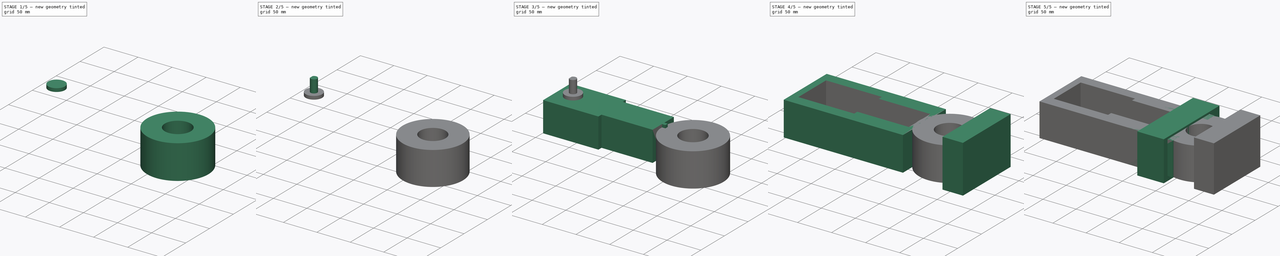
[diagram: build sequence overview — one tinted view per stage of 5, left to right]
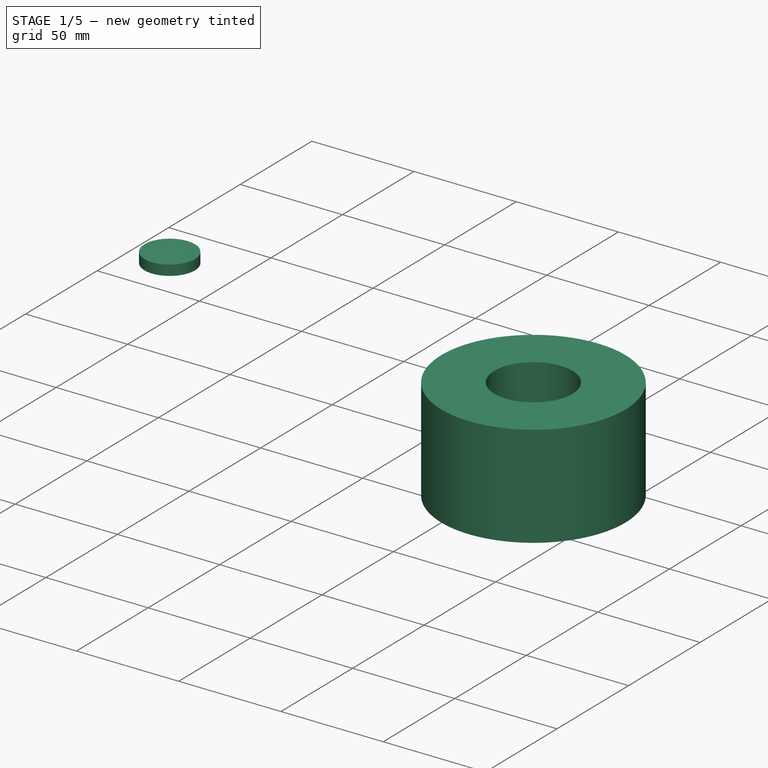
[diagram: stage 1 of 5 — iso view after this stage's code; geometry added in this stage tinted green]
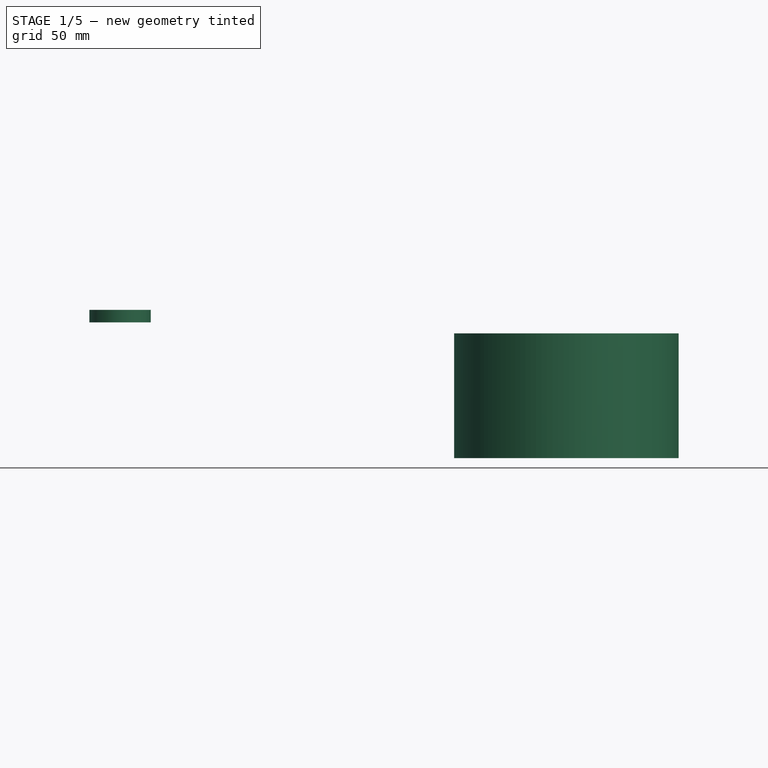
[diagram: stage 1 of 5 — front view after this stage's code; geometry added in this stage tinted green]
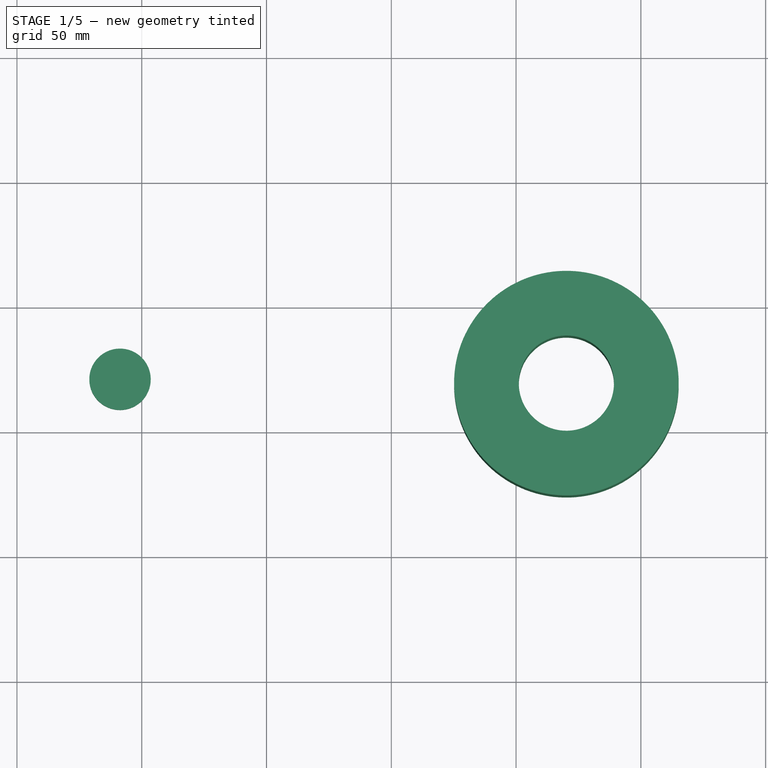
[diagram: stage 1 of 5 — top view after this stage's code; geometry added in this stage tinted green]
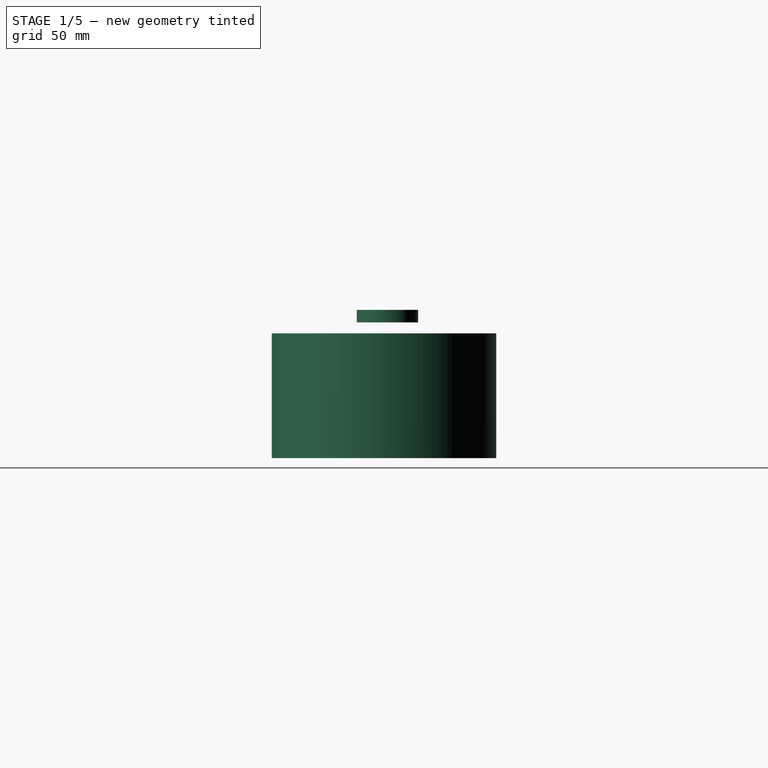
[diagram: stage 1 of 5 — right view after this stage's code; geometry added in this stage tinted green]
FCSTD DOCUMENT  (FreeCAD 0.20R29177 +426 (Git))
Label: motorMountShifted
License: All rights reserved
LicenseURL: http://en.wikipedia.org/wiki/All_rights_reserved
objects: Part::Box×8, Sketcher::SketchObject×5, Part::Extrusion×3, Part::MultiFuse×2, Part::Cut×1, Part::FeaturePython×1
note: 20 computed .brp shape members not serialized (recipe doc carries the construction recipe); baked Part::Feature solids carry a one-line shape summary decoded from their .brp

FEATURE [Part::Box] Box001  label="MotorHead"
  AttacherType = Attacher::AttachEngine3D
  Height = 44.4
  Length = 82
  Placement = pos=(-82,-9.63,0) rot=(0,0,1;0rad)
  Width = 58
FEATURE [Sketcher::SketchObject] Sketch
  ExternalGeometry = -> [Box001]
  FullyConstrained = true
  MapMode = 5
  Placement = pos=(-82,-9.63,44.4) rot=(0,0,1;0rad)
  Support = -> [Box001]
  sketch-geometry (2):
    g0: Circle CenterX=23.3 CenterY=30 CenterZ=0 NormalX=0 NormalY=0 NormalZ=1 AngleXU=0 Radius=12.3
    g1: GeomPoint X=23.3 Y=58 Z=0
  constraints (5):
    c: DistanceX(g0) = 23.3
    c: PointOnObject(g1,g-4)
    c: DistanceX(g-4,g1) = 23.3
    c: DistanceY(g0,g1) = 28
    c: Diameter(g0) = 24.6
FEATURE [Part::Extrusion] Extrude  label="MotorShaftBasePlate"
  Base = -> Sketch
  Dir = (0,0,1)
  DirMode = 2
  FaceMakerClass = Part::FaceMakerBullseye
  LengthFwd = 5
  LengthRev = 0
  Solid = true
  Symmetric = false
FEATURE [Part::FeaturePython] Tube  label="SteeringShaftMount"  # WARN: FeaturePython — macro-defined, semantics opaque (R4)
  AttacherType = Attacher::AttachEngine3D
  Height = 50
  InnerRadius = 19.07
  OuterRadius = 45
  Placement = pos=(120.15,19,-10) rot=(0,0,1;0rad)
FEATURE [Sketcher::SketchObject] Sketch003
  ExternalGeometry = -> [Tube]
  FullyConstrained = true
  MapMode = 5
  Placement = pos=(120.15,19,40) rot=(0,0,1;0rad)
  Support = -> [Tube]
  sketch-geometry (42):
    g0: Circle CenterX=0 CenterY=2.9e-15 CenterZ=0 NormalX=0 NormalY=0 NormalZ=1 AngleXU=0 Radius=24.075
    g1: ArcOfCircle CenterX=0 CenterY=2.9e-15 CenterZ=0 NormalX=0 NormalY=0 NormalZ=1 AngleXU=0 Radius=24.075 StartAngle=1.0472 EndAngle=1.5708
    g2: LineSegment StartX=0 StartY=2.9e-15 StartZ=0 EndX=12.0375 EndY=20.8496 EndZ=0
    g3: LineSegment StartX=0 StartY=2.9e-15 StartZ=0 EndX=0 EndY=24.075 EndZ=0
    g4: ArcOfCircle CenterX=0 CenterY=2.9e-15 CenterZ=0 NormalX=0 NormalY=0 NormalZ=1 AngleXU=0 Radius=19.075 StartAngle=1.0472 EndAngle=1.5708
    g5: LineSegment StartX=0 StartY=24.075 StartZ=0 EndX=1.2e-15 EndY=19.075 EndZ=0
    g6: LineSegment StartX=12.0375 StartY=20.8496 StartZ=0 EndX=9.5375 EndY=16.5194 EndZ=0
    g7: ArcOfCircle CenterX=0 CenterY=2.9e-15 CenterZ=0 NormalX=0 NormalY=0 NormalZ=1 AngleXU=0 Radius=24.075 StartAngle=0.523599 EndAngle=1.0472
    g8: ArcOfCircle CenterX=0 CenterY=2.9e-15 CenterZ=0 NormalX=0 NormalY=0 NormalZ=1 AngleXU=0 Radius=24.075 StartAngle=0 EndAngle=0.523599
    g9: LineSegment StartX=0 StartY=2.9e-15 StartZ=0 EndX=20.8496 EndY=12.0375 EndZ=0
    g10: LineSegment StartX=0 StartY=2.9e-15 StartZ=0 EndX=24.075 EndY=-2.9e-15 EndZ=0
    g11: ArcOfCircle CenterX=0 CenterY=2.9e-15 CenterZ=0 NormalX=0 NormalY=0 NormalZ=1 AngleXU=0 Radius=19.07 StartAngle=0 EndAngle=0.523599
    g12: LineSegment StartX=19.07 StartY=2.9e-15 StartZ=0 EndX=24.075 EndY=-2.9e-15 EndZ=0
    g13: LineSegment StartX=16.5151 StartY=9.535 StartZ=0 EndX=20.8496 EndY=12.0375 EndZ=0
    g14: ArcOfCircle CenterX=0 CenterY=2.9e-15 CenterZ=0 NormalX=0 NormalY=0 NormalZ=1 AngleXU=0 Radius=24.075 StartAngle=5.75959 EndAngle=6.28319
    g15: ArcOfCircle CenterX=0 CenterY=2.9e-15 CenterZ=0 NormalX=0 NormalY=0 NormalZ=1 AngleXU=0 Radius=24.075 StartAngle=5.23599 EndAngle=5.75959
    g16: LineSegment StartX=12.0375 StartY=-20.8496 StartZ=0 EndX=0 EndY=3.6e-15 EndZ=0
    g17: LineSegment StartX=0 StartY=2.9e-15 StartZ=0 EndX=20.8496 EndY=-12.0375 EndZ=0
    g18: ArcOfCircle CenterX=0 CenterY=2.9e-15 CenterZ=0 NormalX=0 NormalY=0 NormalZ=1 AngleXU=0 Radius=19.075 StartAngle=5.23599 EndAngle=5.75959
    g19: LineSegment StartX=9.5375 StartY=-16.5194 StartZ=0 EndX=12.0375 EndY=-20.8496 EndZ=0
    g20: LineSegment StartX=16.5194 StartY=-9.5375 StartZ=0 EndX=20.8496 EndY=-12.0375 EndZ=0
    g21: ArcOfCircle CenterX=0 CenterY=2.9e-15 CenterZ=0 NormalX=0 NormalY=0 NormalZ=1 AngleXU=0 Radius=24.075 StartAngle=4.71239 EndAngle=5.23599
    g22: ArcOfCircle CenterX=0 CenterY=2.9e-15 CenterZ=0 NormalX=0 NormalY=0 NormalZ=1 AngleXU=0 Radius=24.075 StartAngle=4.18879 EndAngle=4.71239
    g23: LineSegment StartX=0 StartY=2.9e-15 StartZ=0 EndX=-4.4e-15 EndY=-24.075 EndZ=0
    g24: LineSegment StartX=0 StartY=2.9e-15 StartZ=0 EndX=-12.0375 EndY=-20.8496 EndZ=0
    g25: ArcOfCircle CenterX=0 CenterY=2.9e-15 CenterZ=0 NormalX=0 NormalY=0 NormalZ=1 AngleXU=0 Radius=19.07 StartAngle=4.18879 EndAngle=4.71239
    g26: LineSegment StartX=-12.0375 StartY=-20.8496 StartZ=0 EndX=-9.535 EndY=-16.5151 EndZ=0
    g27: LineSegment StartX=-3.5e-15 StartY=-19.07 StartZ=0 EndX=-4.4e-15 EndY=-24.075 EndZ=0
    g28: ArcOfCircle CenterX=0 CenterY=2.9e-15 CenterZ=0 NormalX=0 NormalY=0 NormalZ=1 AngleXU=0 Radius=24.075 StartAngle=3.66519 EndAngle=4.18879
    g29: ArcOfCircle CenterX=0 CenterY=2.9e-15 CenterZ=0 NormalX=0 NormalY=0 NormalZ=1 AngleXU=0 Radius=24.075 StartAngle=3.14159 EndAngle=3.66519
    g30: LineSegment StartX=-20.8496 StartY=-12.0375 StartZ=0 EndX=0 EndY=3.6e-15 EndZ=0
    g31: LineSegment StartX=0 StartY=2.9e-15 StartZ=0 EndX=-24.075 EndY=2.9e-15 EndZ=0
    g32: ArcOfCircle CenterX=0 CenterY=2.9e-15 CenterZ=0 NormalX=0 NormalY=0 NormalZ=1 AngleXU=0 Radius=19.07 StartAngle=3.14159 EndAngle=3.66519
    g33: LineSegment StartX=-19.07 StartY=2.9e-15 StartZ=0 EndX=-24.075 EndY=2.9e-15 EndZ=0
    g34: LineSegment StartX=-20.8496 StartY=-12.0375 StartZ=0 EndX=-16.5151 EndY=-9.535 EndZ=0
    g35: ArcOfCircle CenterX=0 CenterY=2.9e-15 CenterZ=0 NormalX=0 NormalY=0 NormalZ=1 AngleXU=0 Radius=24.075 StartAngle=2.61799 EndAngle=3.14159
    g36: ArcOfCircle CenterX=0 CenterY=2.9e-15 CenterZ=0 NormalX=0 NormalY=0 NormalZ=1 AngleXU=0 Radius=24.075 StartAngle=2.0944 EndAngle=2.61799
    g37: LineSegment StartX=0 StartY=2.9e-15 StartZ=0 EndX=-12.0375 EndY=20.8496 EndZ=0
    g38: LineSegment StartX=-20.8496 StartY=12.0375 StartZ=0 EndX=0 EndY=3.6e-15 EndZ=0
    g39: ArcOfCircle CenterX=0 CenterY=2.9e-15 CenterZ=0 NormalX=0 NormalY=0 NormalZ=1 AngleXU=0 Radius=19.075 StartAngle=2.0944 EndAngle=2.61799
    g40: LineSegment StartX=-16.5194 StartY=9.5375 StartZ=0 EndX=-20.8496 EndY=12.0375 EndZ=0
    g41: LineSegment StartX=-12.0375 StartY=20.8496 StartZ=0 EndX=-9.5375 EndY=16.5194 EndZ=0
  constraints (109):
    c: Coincident(g0,g-4)
    c: Radius(g0) = 24.075
    c: Coincident(g1,g0)
    c: PointOnObject(g1,g0)
    c: Angle(g1) = 0.523599
    c: Coincident(g2,g0)
    c: Coincident(g2,g1)
    c: Coincident(g3,g0)
    c: Coincident(g3,g1)
    c: Vertical(g3)
    c: Coincident(g4,g0)
    c: PointOnObject(g4,g3)
    c: PointOnObject(g4,g2)
    c: Radius(g4) = 19.075
    c: Coincident(g5,g1)
    c: Coincident(g5,g4)
    c: Coincident(g6,g1)
    c: Coincident(g6,g4)
    c: Coincident(g7,g0)
    c: Coincident(g7,g1)
    c: Angle(g7) = 0.523599
    c: Coincident(g8,g0)
    c: Coincident(g8,g7)
    c: Angle(g8) = 0.523599
    c: Coincident(g9,g0)
    c: Coincident(g9,g7)
    c: Coincident(g10,g0)
    c: Coincident(g10,g8)
    c: Coincident(g11,g0)
    c: PointOnObject(g11,g-3)
    c: Angle(g11) = 0.523599
    c: PointOnObject(g11,g9)
    c: Coincident(g12,g11)
    c: Coincident(g12,g8)
    c: Coincident(g13,g11)
    c: Coincident(g13,g7)
    c: Coincident(g14,g0)
    c: Coincident(g14,g8)
    c: Angle(g14) = 0.523599
    c: Coincident(g15,g0)
    c: Coincident(g15,g14)
    c: Angle(g15) = 0.523599
    c: Coincident(g16,g15)
    c: Coincident(g16,g0)
    c: Coincident(g17,g0)
    c: Coincident(g17,g14)
    c: Coincident(g18,g0)
    c: PointOnObject(g18,g17)
    c: PointOnObject(g18,g16)
    c: Radius(g18) = 19.075
    c: Coincident(g19,g18)
    c: Coincident(g19,g15)
    c: Coincident(g20,g18)
    c: Coincident(g20,g14)
    c: Coincident(g21,g0)
    c: Coincident(g21,g15)
    c: Angle(g21) = 0.523599
    c: Coincident(g22,g0)
    c: Coincident(g22,g21)
    c: Angle(g22) = 0.523599
    c: Coincident(g23,g0)
    c: Coincident(g23,g21)
    c: Coincident(g24,g0)
    c: Coincident(g24,g22)
    c: Coincident(g25,g0)
    c: PointOnObject(g25,g23)
    c: PointOnObject(g25,g-3)
    c: Angle(g25) = 0.523599
    c: Coincident(g26,g22)
    c: Coincident(g26,g25)
    c: Coincident(g27,g25)
    c: Coincident(g27,g21)
    c: Coincident(g28,g0)
    c: PointOnObject(g28,g22)
    c: Angle(g28) = 0.523599
    c: Coincident(g29,g0)
    c: Coincident(g29,g28)
    c: Angle(g29) = 0.523599
    c: Coincident(g30,g28)
    c: Coincident(g30,g0)
    c: Coincident(g31,g0)
    c: Coincident(g31,g29)
    c: Horizontal(g31)
    c: Coincident(g32,g0)
    c: PointOnObject(g32,g-3)
    c: Coincident(g33,g32)
    c: Coincident(g33,g29)
    c: Horizontal(g33)
    c: Coincident(g34,g28)
    c: Coincident(g34,g32)
    c: Angle(g32) = 0.523599
    c: Coincident(g35,g0)
    c: Coincident(g35,g29)
    c: Angle(g35) = 0.523599
    c: Coincident(g36,g0)
    c: Coincident(g36,g35)
    c: Angle(g36) = 0.523599
    c: Coincident(g37,g0)
    c: Coincident(g37,g36)
    c: Coincident(g38,g35)
    c: Coincident(g38,g0)
    c: Coincident(g39,g0)
    c: PointOnObject(g39,g38)
    c: PointOnObject(g39,g37)
    c: Radius(g39) = 19.075
    c: Coincident(g40,g39)
    c: Coincident(g40,g35)
    c: Coincident(g41,g36)
    c: Coincident(g41,g39)
FEATURE [Sketcher::SketchObject] Sketch004
  ExternalGeometry = -> [Sketch003]
  FullyConstrained = true
  MapMode = 5
  Placement = pos=(120.15,19,40) rot=(0,0,1;0rad)
  Support = -> [Tube]
  sketch-geometry (24):
    g0: LineSegment StartX=16.5194 StartY=-9.5375 StartZ=0 EndX=20.8496 EndY=-12.0375 EndZ=0
    g1: ArcOfCircle CenterX=0 CenterY=0 CenterZ=0 NormalX=0 NormalY=0 NormalZ=1 AngleXU=0 Radius=19.075 StartAngle=5.23599 EndAngle=5.75959
    g2: ArcOfCircle CenterX=0 CenterY=0 CenterZ=0 NormalX=0 NormalY=0 NormalZ=1 AngleXU=0 Radius=24.075 StartAngle=5.23599 EndAngle=5.75959
    g3: LineSegment StartX=12.0375 StartY=-20.8496 StartZ=0 EndX=9.5375 EndY=-16.5194 EndZ=0
    g4: LineSegment StartX=-4.4e-15 StartY=-24.075 StartZ=0 EndX=-3.5e-15 EndY=-19.07 EndZ=0
    g5: LineSegment StartX=-9.535 StartY=-16.5151 StartZ=0 EndX=-12.0375 EndY=-20.8496 EndZ=0
    g6: LineSegment StartX=-20.8496 StartY=-12.0375 StartZ=0 EndX=-16.5151 EndY=-9.535 EndZ=0
    g7: LineSegment StartX=-19.07 StartY=2.3e-15 StartZ=0 EndX=-24.075 EndY=2.9e-15 EndZ=0
    g8: LineSegment StartX=-16.5194 StartY=9.5375 StartZ=0 EndX=-20.8496 EndY=12.0375 EndZ=0
    g9: LineSegment StartX=-12.0375 StartY=20.8496 StartZ=0 EndX=-9.5375 EndY=16.5194 EndZ=0
    g10: LineSegment StartX=1.5e-15 StartY=24.075 StartZ=0 EndX=1.2e-15 EndY=19.075 EndZ=0
    g11: LineSegment StartX=9.5375 StartY=16.5194 StartZ=0 EndX=12.0375 EndY=20.8496 EndZ=0
    g12: LineSegment StartX=16.5151 StartY=9.535 StartZ=0 EndX=20.8496 EndY=12.0375 EndZ=0
    g13: LineSegment StartX=19.07 StartY=0 StartZ=0 EndX=24.075 EndY=0 EndZ=0
    g14: ArcOfCircle CenterX=0 CenterY=0 CenterZ=0 NormalX=0 NormalY=0 NormalZ=1 AngleXU=0 Radius=19.07 StartAngle=4.18879 EndAngle=4.71239
    g15: ArcOfCircle CenterX=0 CenterY=0 CenterZ=0 NormalX=0 NormalY=0 NormalZ=1 AngleXU=0 Radius=24.075 StartAngle=4.18879 EndAngle=4.71239
    g16: ArcOfCircle CenterX=0 CenterY=0 CenterZ=0 NormalX=0 NormalY=0 NormalZ=1 AngleXU=0 Radius=24.075 StartAngle=3.14159 EndAngle=3.66519
    g17: ArcOfCircle CenterX=0 CenterY=0 CenterZ=0 NormalX=0 NormalY=0 NormalZ=1 AngleXU=0 Radius=19.07 StartAngle=3.14159 EndAngle=3.66519
    g18: ArcOfCircle CenterX=0 CenterY=0 CenterZ=0 NormalX=0 NormalY=0 NormalZ=1 AngleXU=0 Radius=19.075 StartAngle=2.0944 EndAngle=2.61799
    g19: ArcOfCircle CenterX=0 CenterY=0 CenterZ=0 NormalX=0 NormalY=0 NormalZ=1 AngleXU=0 Radius=24.075 StartAngle=2.0944 EndAngle=2.61799
    g20: ArcOfCircle CenterX=0 CenterY=0 CenterZ=0 NormalX=0 NormalY=0 NormalZ=1 AngleXU=0 Radius=24.075 StartAngle=1.0472 EndAngle=1.5708
    g21: ArcOfCircle CenterX=0 CenterY=0 CenterZ=0 NormalX=0 NormalY=0 NormalZ=1 AngleXU=0 Radius=19.075 StartAngle=1.0472 EndAngle=1.5708
    g22: ArcOfCircle CenterX=0 CenterY=0 CenterZ=0 NormalX=0 NormalY=0 NormalZ=1 AngleXU=0 Radius=19.07 StartAngle=0 EndAngle=0.523599
    g23: ArcOfCircle CenterX=0 CenterY=0 CenterZ=0 NormalX=0 NormalY=0 NormalZ=1 AngleXU=0 Radius=24.075 StartAngle=0 EndAngle=0.523599
  constraints (60):
    c: Coincident(g0,g-14)
    c: Coincident(g0,g-8)
    c: Coincident(g1,g-16)
    c: Coincident(g1,g0)
    c: Coincident(g1,g-21)
    c: Coincident(g2,g1)
    c: Coincident(g2,g0)
    c: Coincident(g2,g-21)
    c: Coincident(g3,g2)
    c: Coincident(g3,g1)
    c: Coincident(g4,g-22)
    c: Coincident(g4,g-22)
    c: Coincident(g5,g-20)
    c: Coincident(g5,g-20)
    c: PointOnObject(g6,g-19)
    c: Coincident(g6,g-19)
    c: Coincident(g7,g-23)
    c: Coincident(g7,g-23)
    c: Coincident(g8,g-18)
    c: Coincident(g8,g-18)
    c: Coincident(g9,g-17)
    c: Coincident(g9,g-17)
    c: Coincident(g10,g-6)
    c: Coincident(g10,g-4)
    c: Coincident(g11,g-5)
    c: Coincident(g11,g-6)
    c: Coincident(g12,g-24)
    c: Coincident(g12,g-24)
    c: Coincident(g13,g-13)
    c: Coincident(g13,g-7)
    c: Coincident(g14,g1)
    c: Coincident(g14,g5)
    c: Coincident(g14,g4)
    c: Coincident(g15,g1)
    c: Coincident(g15,g5)
    c: Coincident(g15,g4)
    c: Coincident(g16,g1)
    c: Coincident(g16,g6)
    c: Coincident(g16,g7)
    c: Coincident(g17,g1)
    c: Coincident(g17,g6)
    c: Coincident(g17,g7)
    c: Coincident(g18,g1)
    c: Coincident(g18,g8)
    c: Coincident(g18,g9)
    c: Coincident(g19,g1)
    c: Coincident(g19,g8)
    c: Coincident(g19,g9)
    c: Coincident(g20,g1)
    c: Coincident(g20,g10)
    c: Coincident(g20,g11)
    c: Coincident(g21,g1)
    c: Coincident(g21,g10)
    c: Coincident(g21,g11)
    c: Coincident(g22,g1)
    c: Coincident(g22,g12)
    c: Coincident(g22,g13)
    c: Coincident(g23,g1)
    c: Coincident(g23,g12)
    c: Coincident(g23,g13)
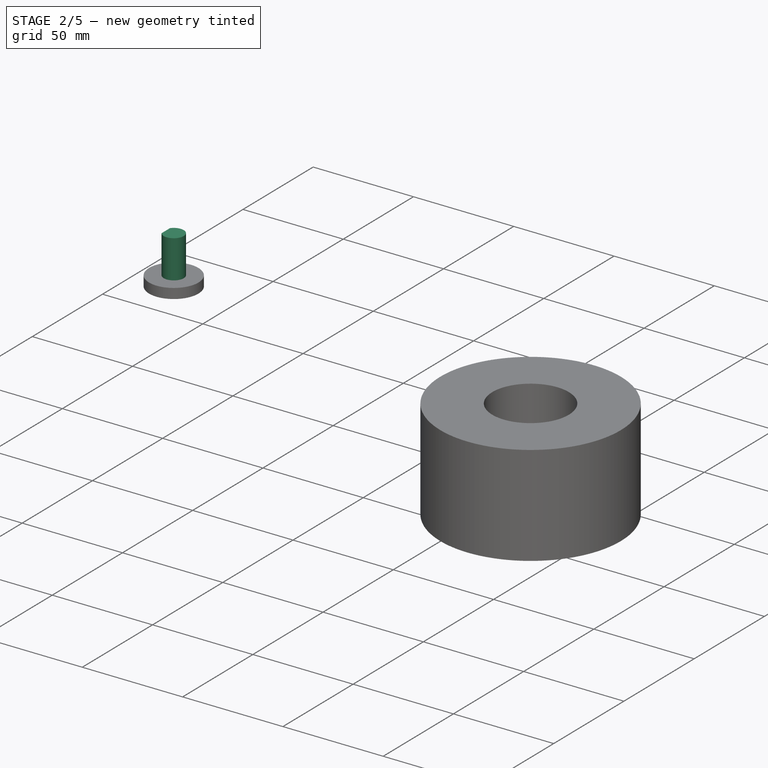
[diagram: stage 2 of 5 — iso view after this stage's code; geometry added in this stage tinted green]
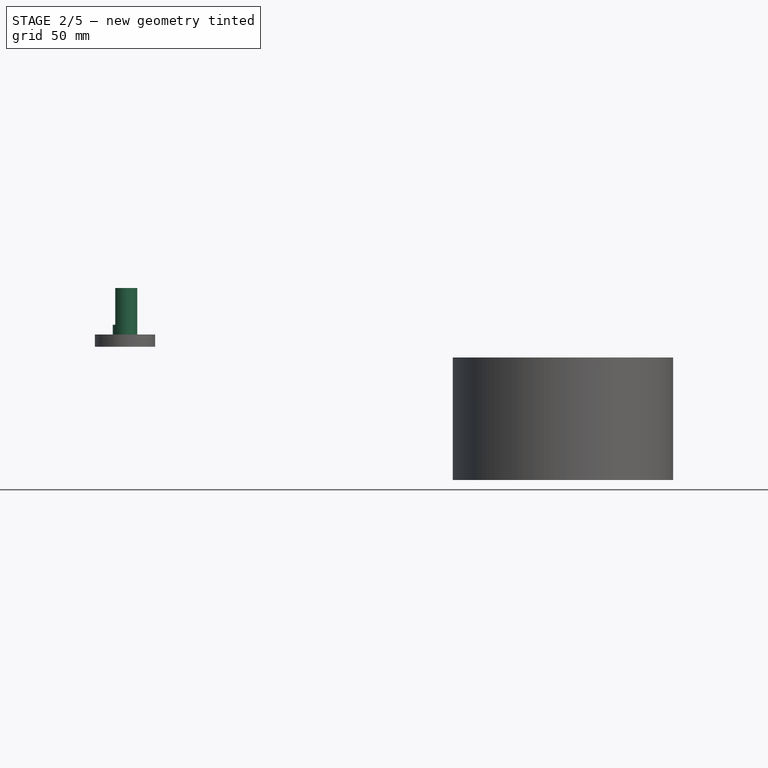
[diagram: stage 2 of 5 — front view after this stage's code; geometry added in this stage tinted green]
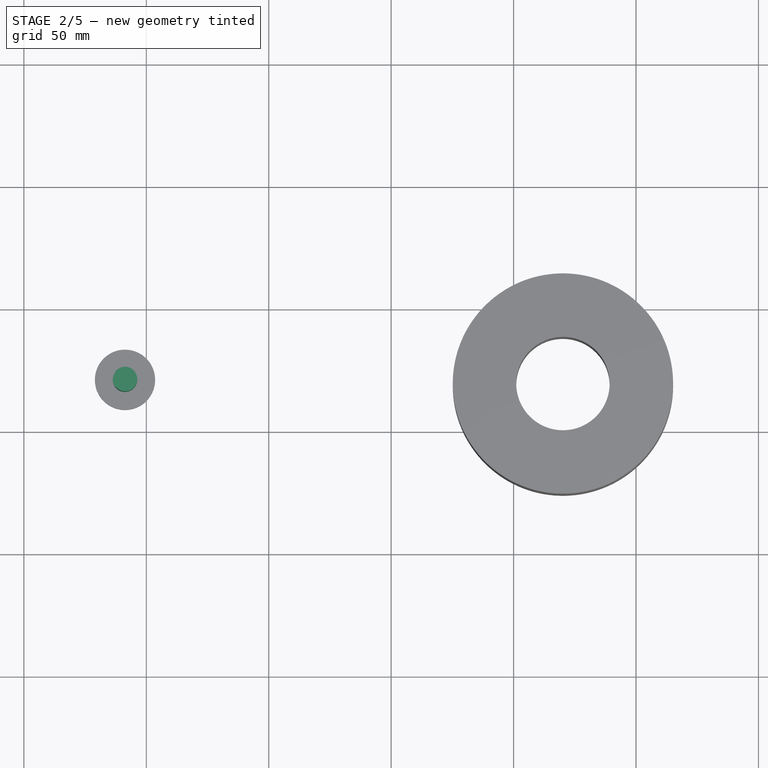
[diagram: stage 2 of 5 — top view after this stage's code; geometry added in this stage tinted green]
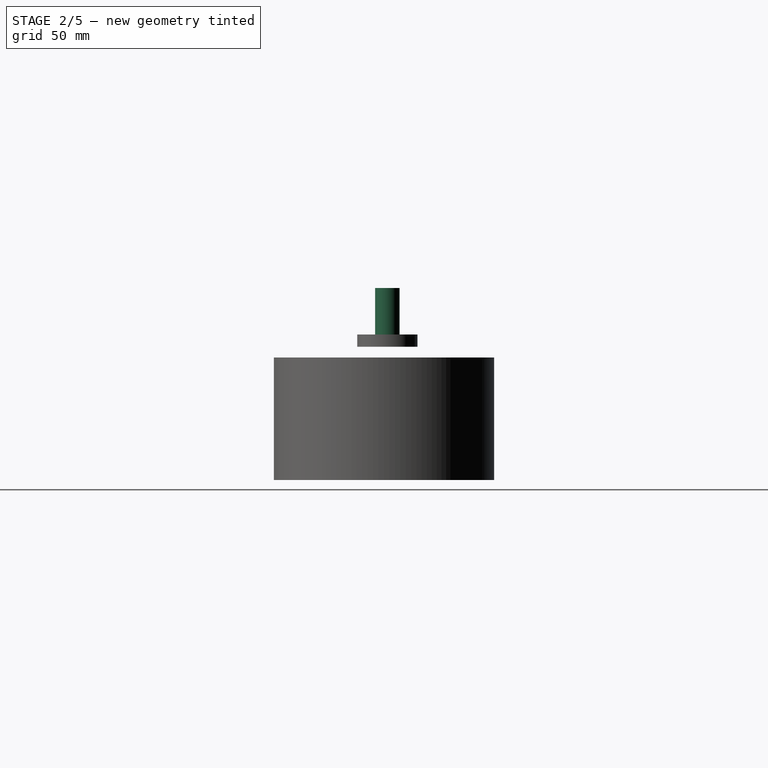
[diagram: stage 2 of 5 — right view after this stage's code; geometry added in this stage tinted green]
FEATURE [Sketcher::SketchObject] Sketch001
  ExternalGeometry = -> [Extrude,Box001]
  FullyConstrained = true
  MapMode = 5
  Placement = pos=(0,0,49.4) rot=(0,0,1;0rad)
  Support = -> [Extrude]
  sketch-geometry (3):
    g0: GeomPoint X=-82 Y=20.37 Z=0
    g1: GeomPoint X=-58.7 Y=48.37 Z=0
    g2: Circle CenterX=-58.7 CenterY=20.37 CenterZ=0 NormalX=0 NormalY=0 NormalZ=1 AngleXU=0 Radius=5
  constraints (6):
    c: PointOnObject(g0,g-4)
    c: PointOnObject(g1,g-5)
    c: DistanceY(g0,g-5) = 28
    c: DistanceX(g-5,g1) = 23.3
    c: Diameter(g2) = 10
    c: Coincident(g2,g-3)
FEATURE [Part::Extrusion] Extrude001  label="MotorShaftFull"
  Base = -> Sketch001
  Dir = (0,0,1)
  DirMode = 2
  FaceMakerClass = Part::FaceMakerBullseye
  LengthFwd = 4
  LengthRev = 0
  Solid = true
  Symmetric = false
FEATURE [Sketcher::SketchObject] Sketch002
  ExternalGeometry = -> [Extrude001]
  FullyConstrained = true
  MapMode = 5
  Placement = pos=(0,0,53.4) rot=(0,0,1;0rad)
  Support = -> [Extrude001]
  sketch-geometry (2):
    g0: LineSegment StartX=-62.7 StartY=23.37 StartZ=0 EndX=-62.7 EndY=17.37 EndZ=0
    g1: ArcOfCircle CenterX=-58.7 CenterY=20.37 CenterZ=0 NormalX=0 NormalY=0 NormalZ=1 AngleXU=0 Radius=5 StartAngle=3.78509 EndAngle=8.78128
  constraints (6):
    c: PointOnObject(g0,g-3)
    c: Vertical(g0)
    c: Coincident(g1,g-3)
    c: Coincident(g1,g0)
    c: Coincident(g1,g0)
    c: DistanceX(g0,g1) = 4
FEATURE [Part::Extrusion] Extrude002  label="MotorShaftD"
  Base = -> Sketch002
  Dir = (0,0,1)
  DirMode = 2
  FaceMakerClass = Part::FaceMakerBullseye
  LengthFwd = 15
  LengthRev = 0
  Solid = true
  Symmetric = false
FEATURE [Part::MultiFuse] Fusion  label="MotorShaftAssembly"
  Shapes = -> [Extrude,Extrude001,Extrude002]
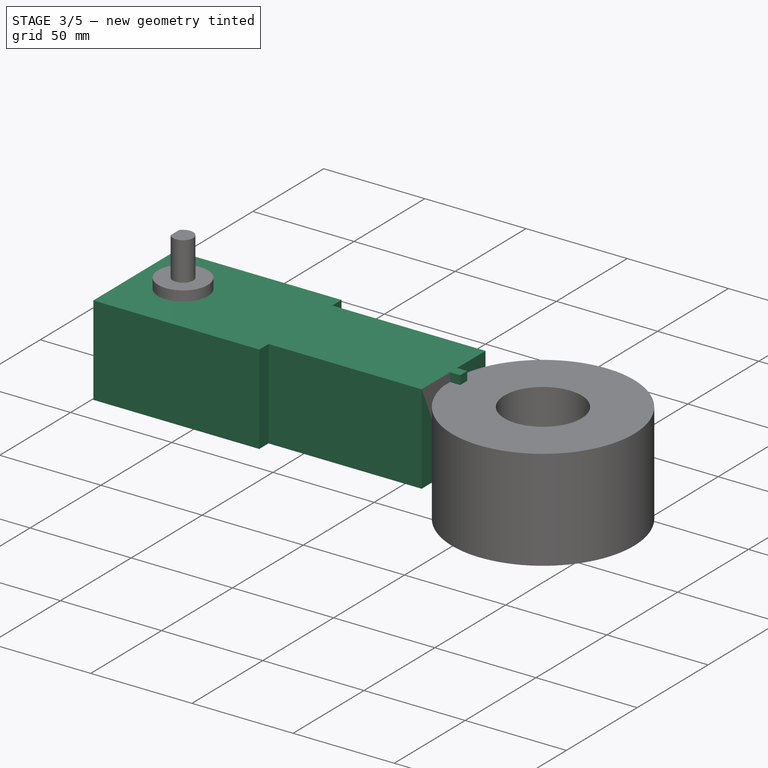
[diagram: stage 3 of 5 — iso view after this stage's code; geometry added in this stage tinted green]
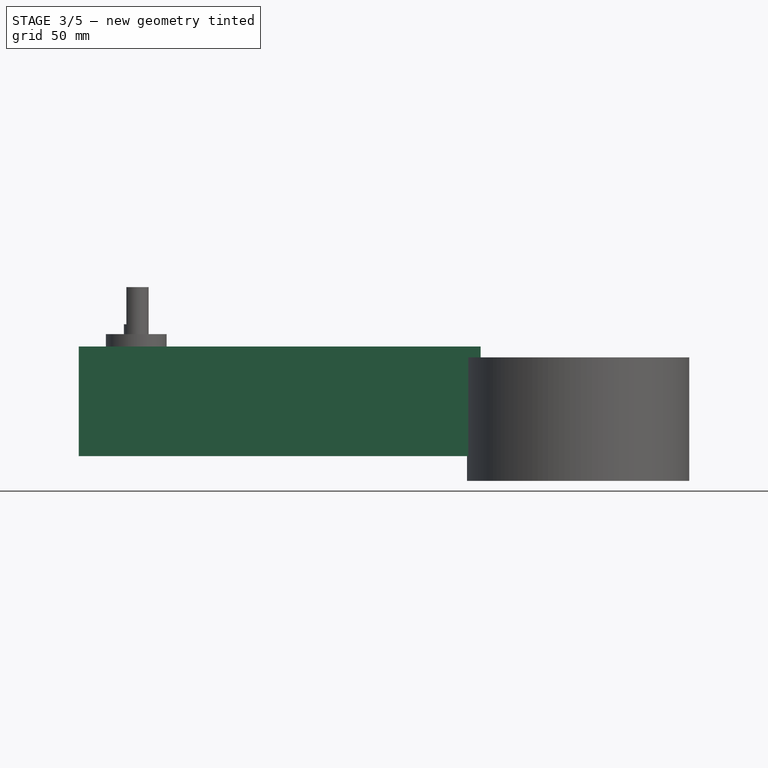
[diagram: stage 3 of 5 — front view after this stage's code; geometry added in this stage tinted green]
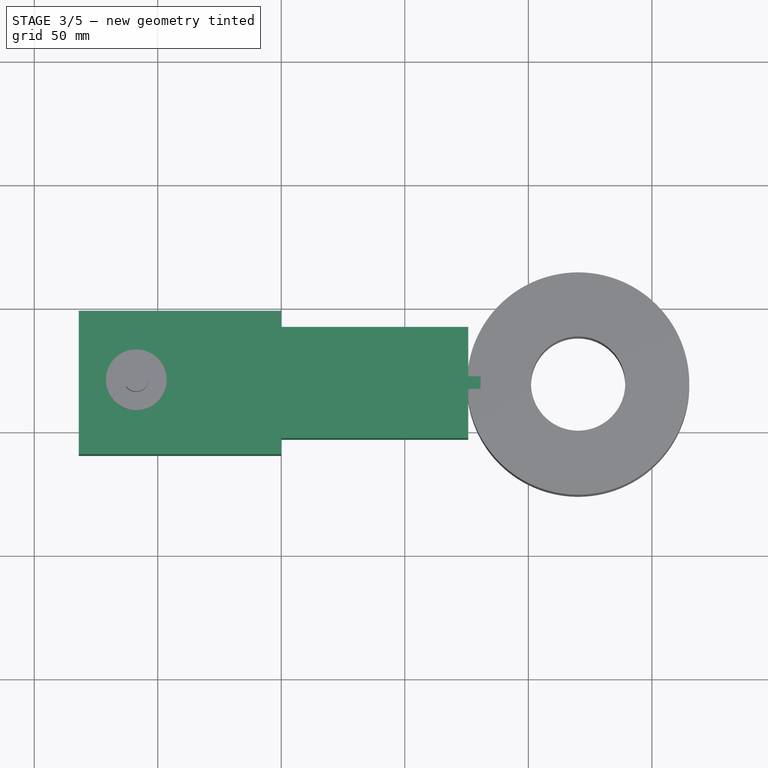
[diagram: stage 3 of 5 — top view after this stage's code; geometry added in this stage tinted green]
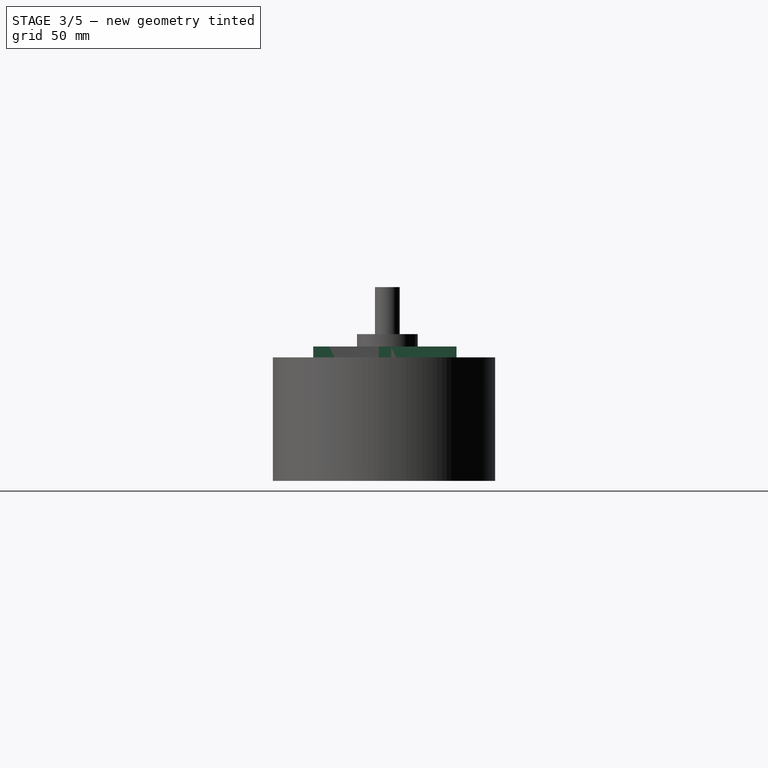
[diagram: stage 3 of 5 — right view after this stage's code; geometry added in this stage tinted green]
FEATURE [Part::Box] Box  label="MotorCyclinder"
  AttacherType = Attacher::AttachEngine3D
  Height = 44.4
  Length = 75.7
  Placement = pos=(0,-3.13,0) rot=(0,0,1;0rad)
  Width = 45
FEATURE [Part::Box] Box007  label="NubChannel"
  AttacherType = Attacher::AttachEngine3D
  Height = 44.4
  Length = 5
  Placement = pos=(75.7,16.87,0) rot=(0,0,1;0rad)
  Width = 5
FEATURE [Part::MultiFuse] Fusion005  label="Motor"
  Shapes = -> [Box,Box001,Box007,Fusion]
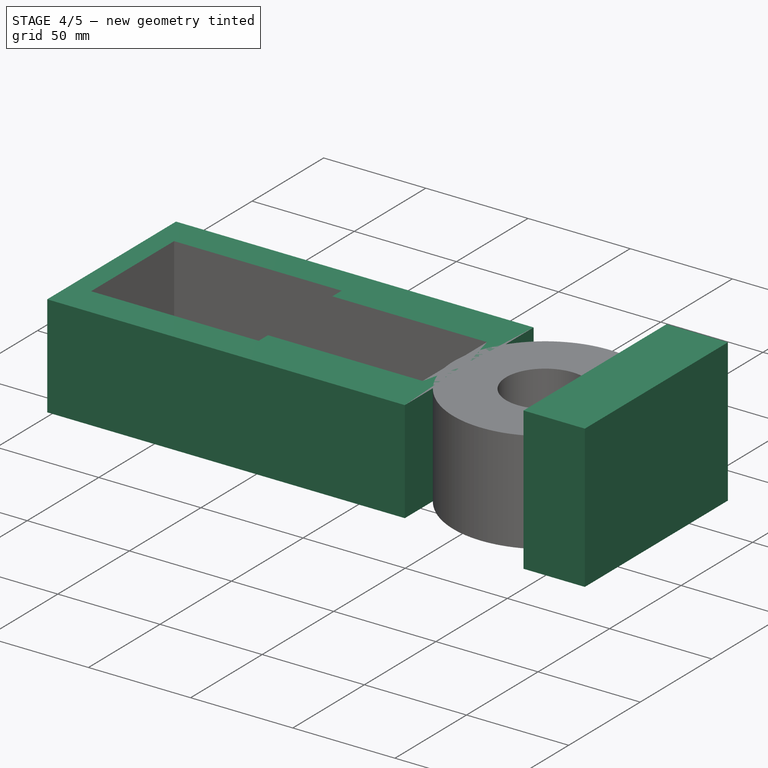
[diagram: stage 4 of 5 — iso view after this stage's code; geometry added in this stage tinted green]
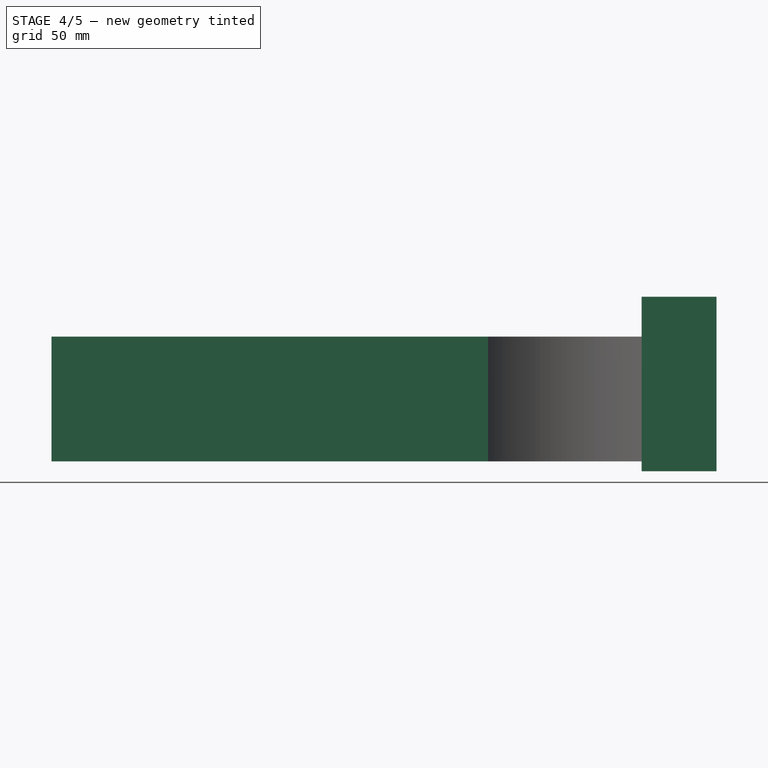
[diagram: stage 4 of 5 — front view after this stage's code; geometry added in this stage tinted green]
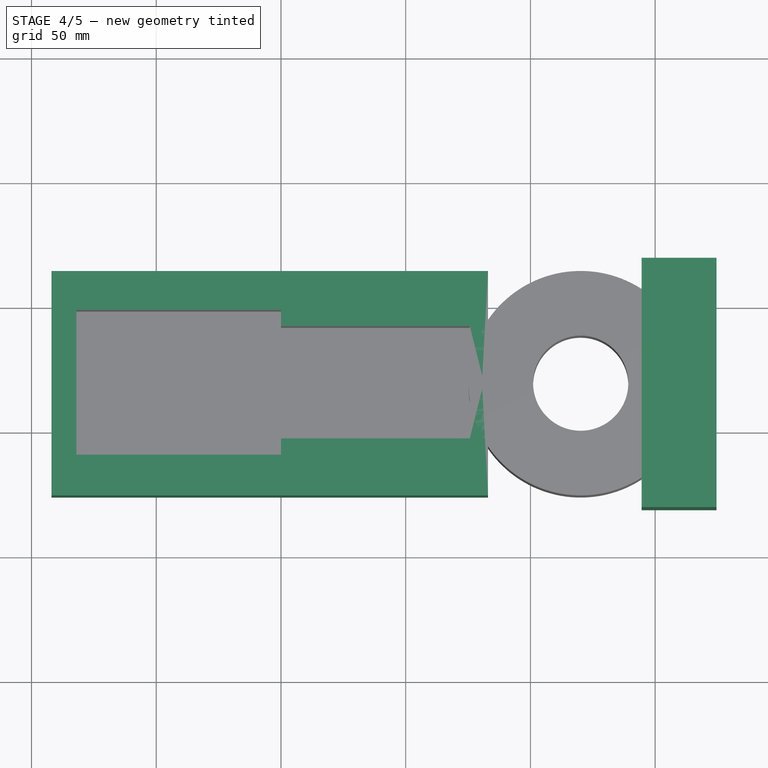
[diagram: stage 4 of 5 — top view after this stage's code; geometry added in this stage tinted green]
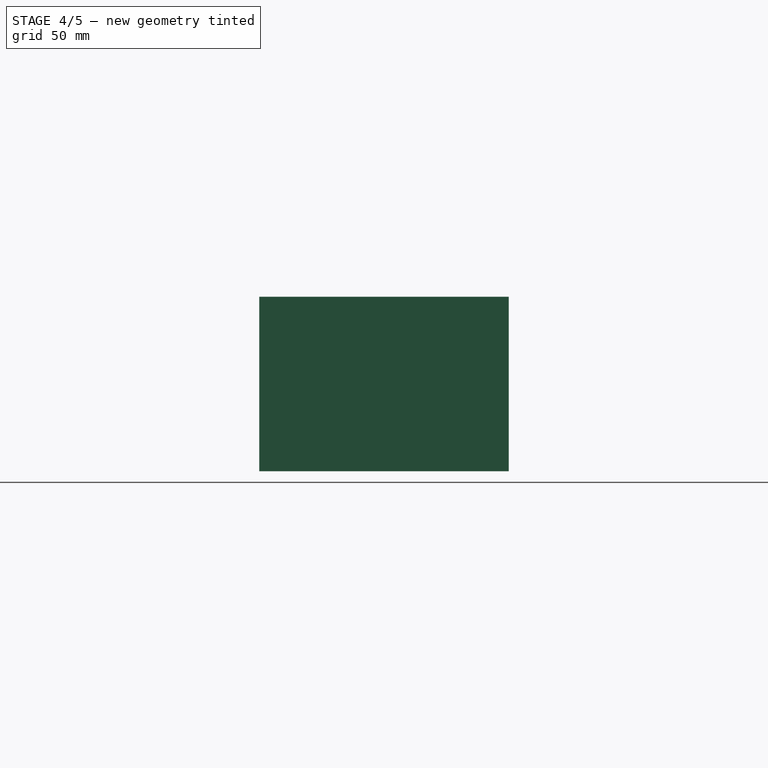
[diagram: stage 4 of 5 — right view after this stage's code; geometry added in this stage tinted green]
FEATURE [Part::Box] Box002  label="MotorCastOuter"
  AttacherType = Attacher::AttachEngine3D
  Height = 50
  Length = 175
  Placement = pos=(-92,-26,-10) rot=(0,0,1;0rad)
  Width = 90
FEATURE [Part::Box] Box008  label="SteeringShaftCutter"
  AttacherType = Attacher::AttachEngine3D
  Height = 70
  Length = 30
  Placement = pos=(144.6,-31,-14) rot=(0,0,1;0rad)
  Width = 100
FEATURE [Part::Cut] Cut  label="MotorCast"
  Base = -> Box002
  Tool = -> Fusion005
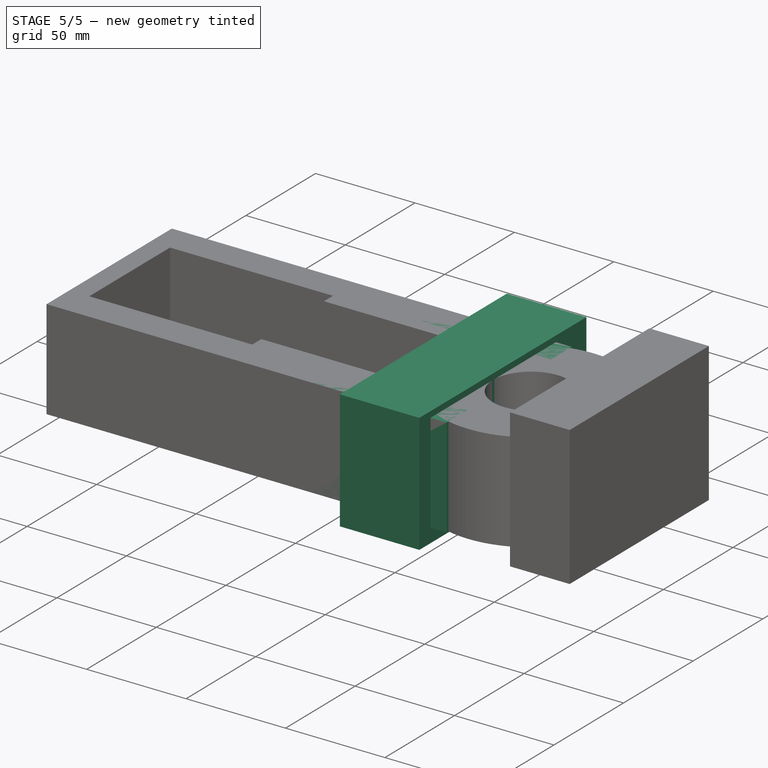
[diagram: stage 5 of 5 — iso view after this stage's code; geometry added in this stage tinted green]
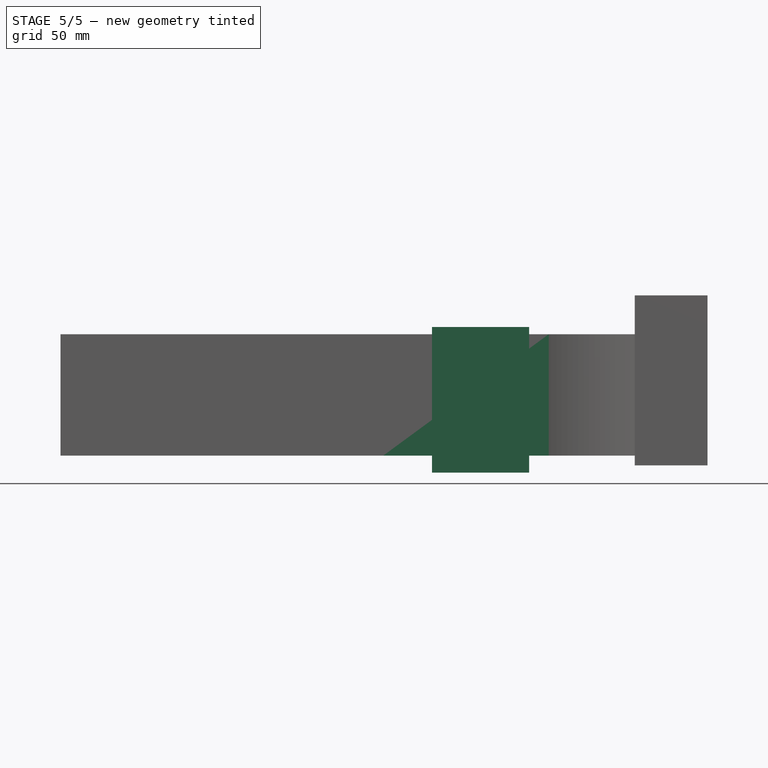
[diagram: stage 5 of 5 — front view after this stage's code; geometry added in this stage tinted green]
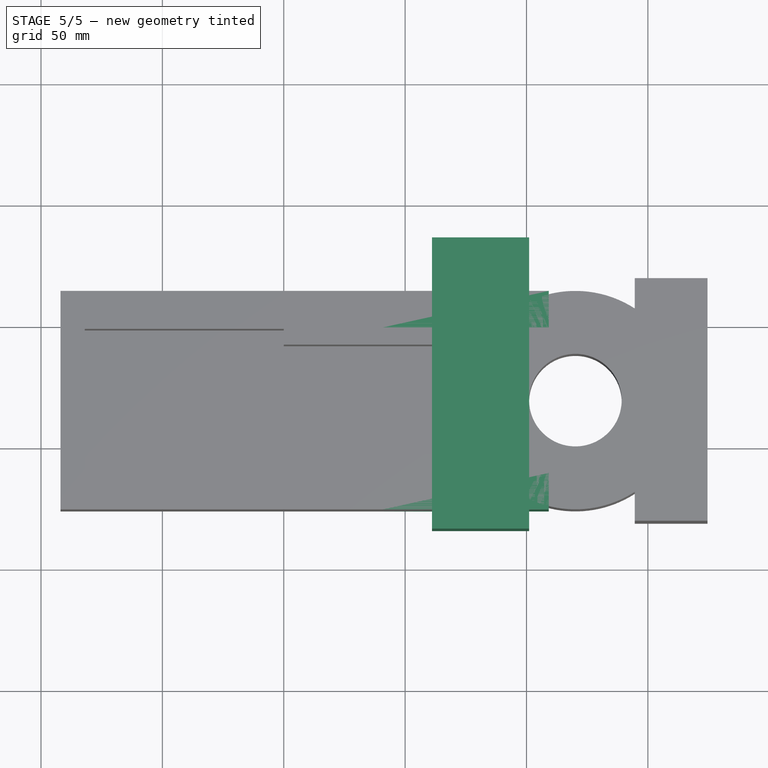
[diagram: stage 5 of 5 — top view after this stage's code; geometry added in this stage tinted green]
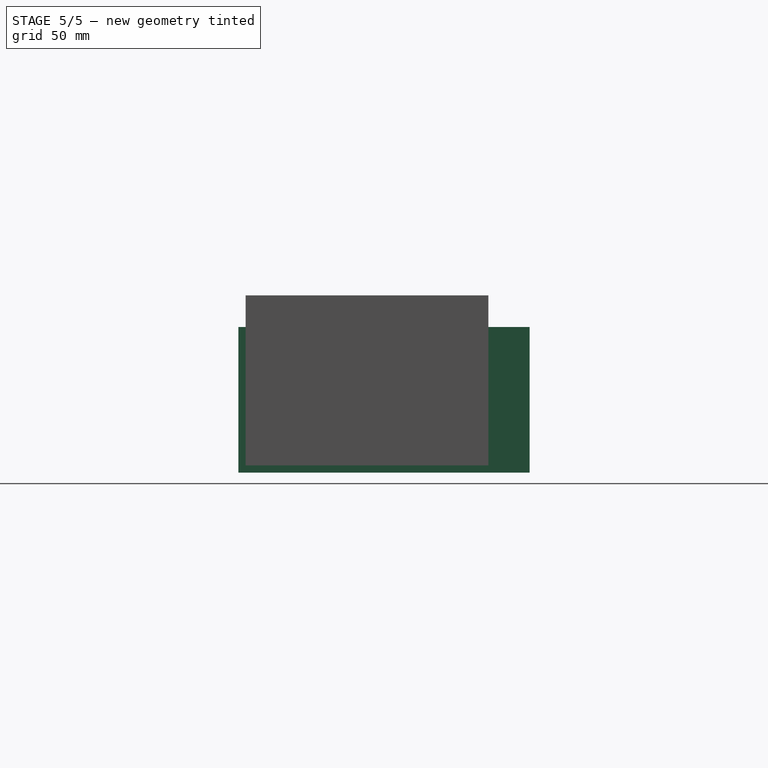
[diagram: stage 5 of 5 — right view after this stage's code; geometry added in this stage tinted green]
FEATURE [Part::Box] Box004  label="Cube004"
  AttacherType = Attacher::AttachEngine3D
  Height = 50
  Length = 68.15
  Placement = pos=(41,-26,-10) rot=(0,0,1;0rad)
  Width = 15
FEATURE [Part::Box] Box005  label="Cube005"
  AttacherType = Attacher::AttachEngine3D
  Height = 50
  Length = 68.15
  Placement = pos=(41,49,-10) rot=(0,0,1;0rad)
  Width = 15
FEATURE [Part::Box] Box006  label="RoundOff"
  AttacherType = Attacher::AttachEngine3D
  Height = 60
  Length = 40
  Placement = pos=(61.1,-34,-17) rot=(0,0,1;0rad)
  Width = 120
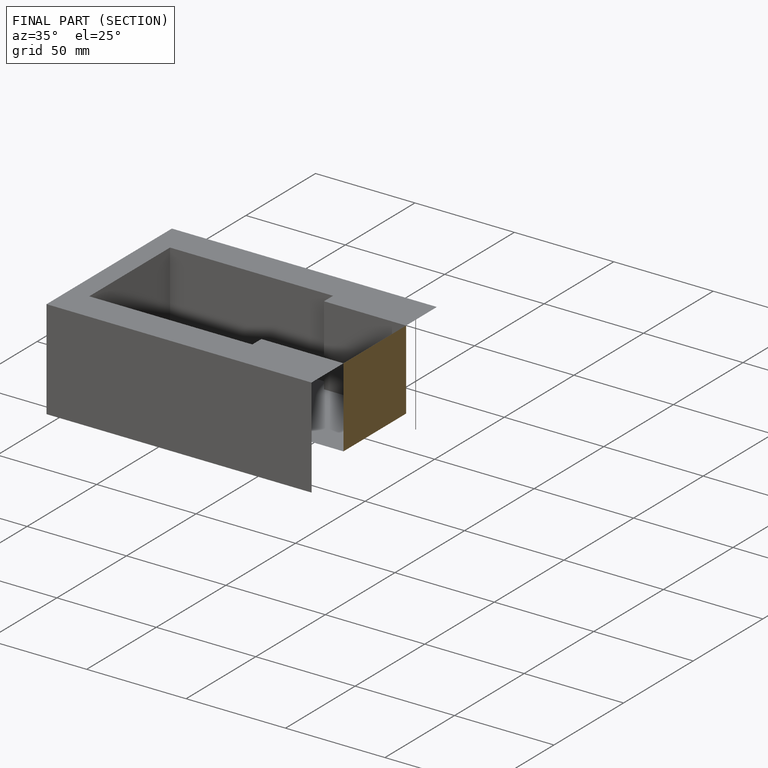
[diagram: finished part — half-section view (interior)]
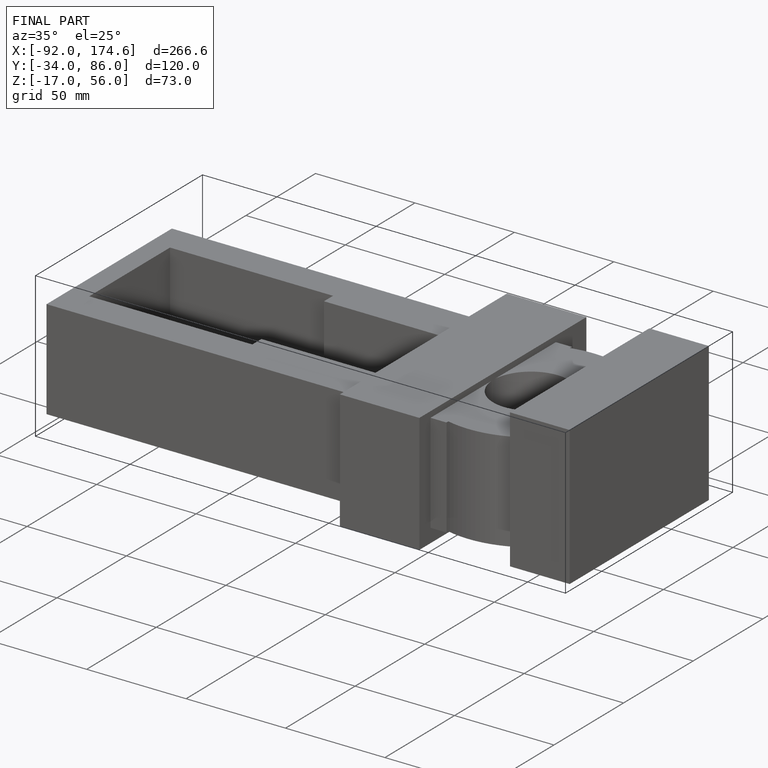
[diagram: finished part — iso view with bounding-box wireframe]
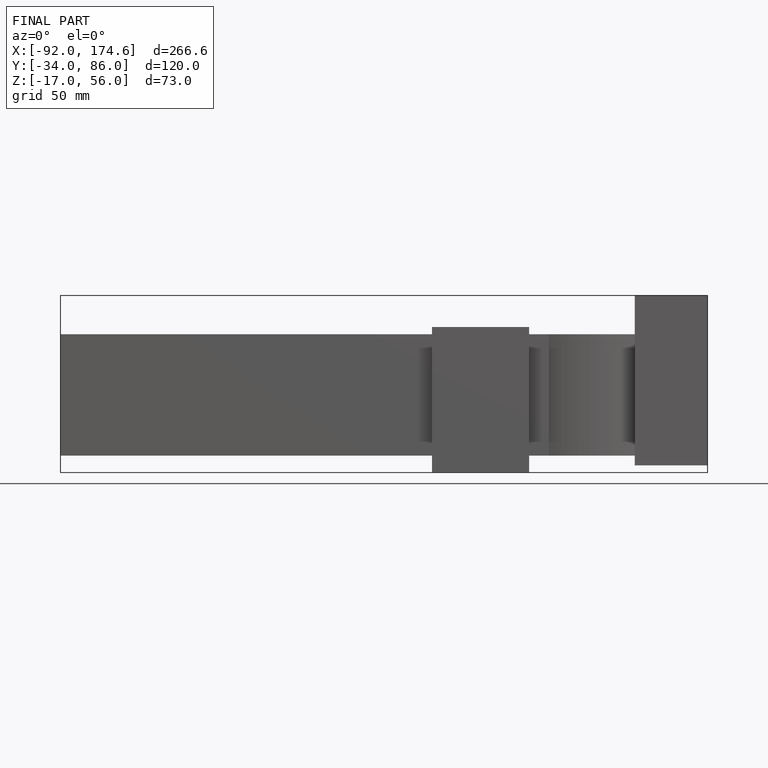
[diagram: finished part — front view with bounding-box wireframe]
